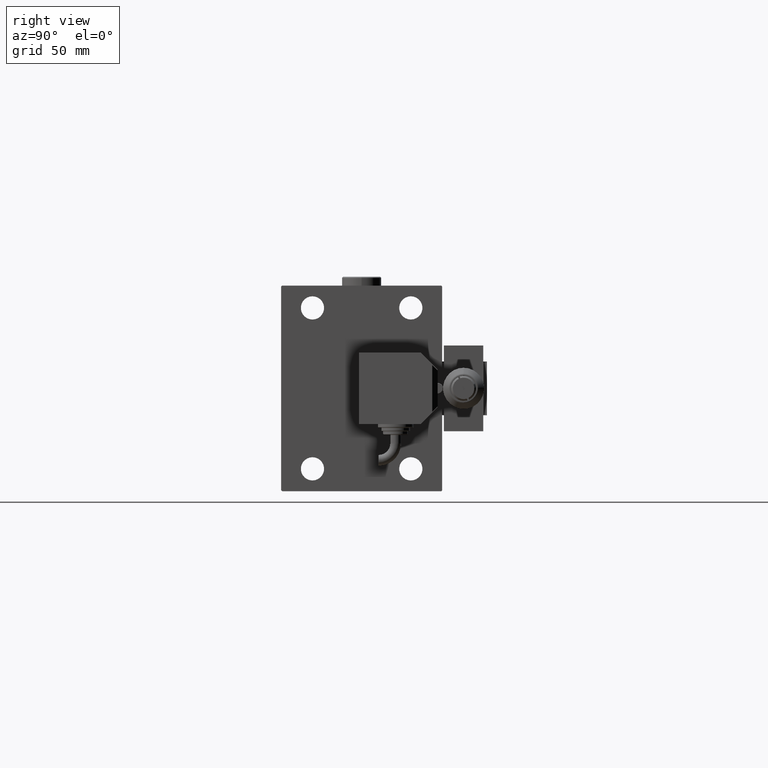
[diagram: clean part render]
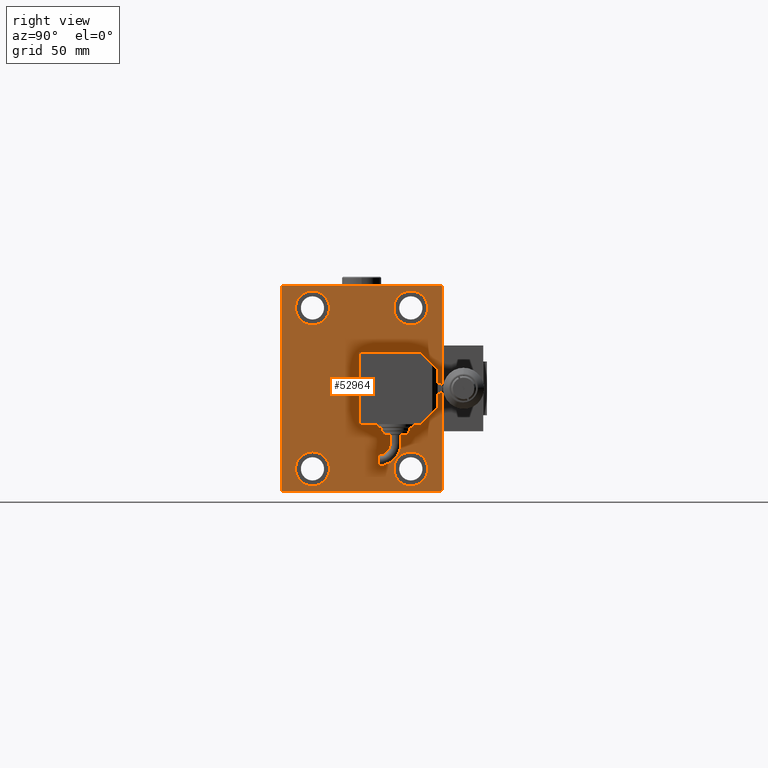
[diagram: same view with one face highlighted and labeled with its STEP entity id]
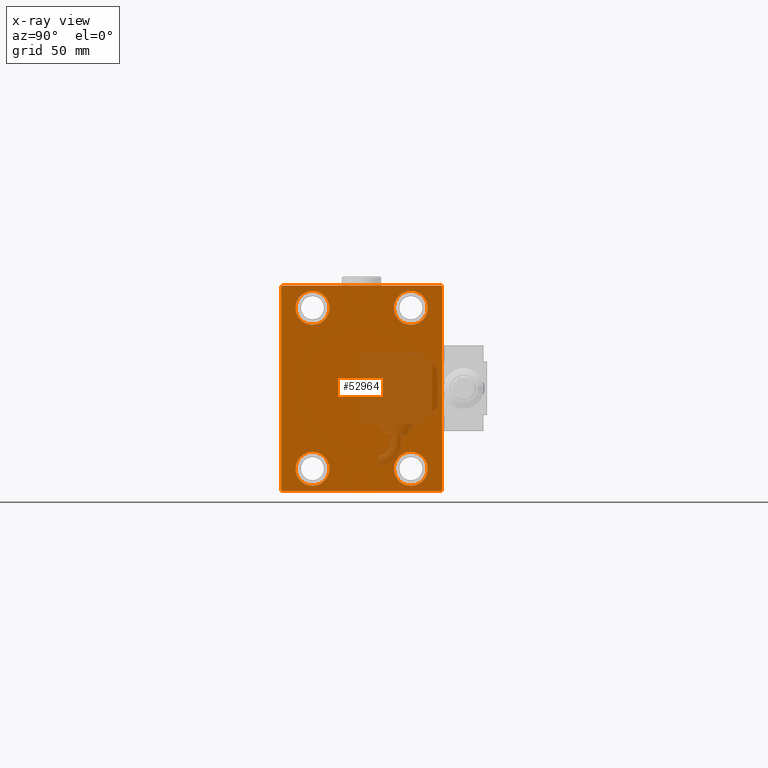
[diagram: x-ray of the same camera — body ghosted, the highlighted face saturated]
A machine part, right view. The second image highlights one B-rep face of the part: STEP entity #52964.
The next image is the same camera in x-ray: the body ghosted, the highlighted face saturated — about 21% of this face is hidden behind the body in this view.
In plain terms, the highlighted planar face has unit normal (1, 0, 0).
Its self-contained STEP definition (entity closure, byte-faithful):
#745 = DIRECTION ( 'NONE',  ( 0.000000000000000000, -1.206764157201257045E-16, 1.000000000000000000 ) ) ;
#1294 = CARTESIAN_POINT ( 'NONE',  ( 158.0000000000000000, 45.00000000000000000, 57.50000000000000711 ) ) ;
#1338 = DIRECTION ( 'NONE',  ( -0.000000000000000000, 0.7071067811865474617, 0.7071067811865474617 ) ) ;
#1536 = CARTESIAN_POINT ( 'NONE',  ( 158.0000000000000000, -51.00000000000001421, -51.00000000000001421 ) ) ;
#2130 = FACE_OUTER_BOUND ( 'NONE', #52590, .T. ) ;
#2798 = DIRECTION ( 'NONE',  ( 0.000000000000000000, 0.000000000000000000, 1.000000000000000000 ) ) ;
#3332 = CARTESIAN_POINT ( 'NONE',  ( 158.0000000000000000, -27.49999999999998934, 45.00000000000000711 ) ) ;
#3593 = AXIS2_PLACEMENT_3D ( 'NONE', #7144, #23738, #2798 ) ;
#4117 = LINE ( 'NONE', #45549, #38341 ) ;
#4161 = DIRECTION ( 'NONE',  ( 0.000000000000000000, -0.7071067811865474617, -0.7071067811865474617 ) ) ;
#4557 = VECTOR ( 'NONE', #4161, 1000.000000000000114 ) ;
#5149 = EDGE_CURVE ( 'NONE', #21983, #9089, #25234, .T. ) ;
#5206 = VECTOR ( 'NONE', #1338, 1000.000000000000114 ) ;
#5328 = EDGE_CURVE ( 'NONE', #32459, #35871, #35851, .T. ) ;
#5654 = DIRECTION ( 'NONE',  ( 0.000000000000000000, 1.000000000000000000, 0.000000000000000000 ) ) ;
#6693 = EDGE_CURVE ( 'NONE', #8319, #7851, #32913, .T. ) ;
#7144 = CARTESIAN_POINT ( 'NONE',  ( 158.0000000000000000, 27.50000000000001066, 45.00000000000000711 ) ) ;
#7473 = DIRECTION ( 'NONE',  ( 0.000000000000000000, 0.000000000000000000, 1.000000000000000000 ) ) ;
#7851 = VERTEX_POINT ( 'NONE', #14677 ) ;
#7898 = CIRCLE ( 'NONE', #26140, 9.500000000000001776 ) ;
#8196 = EDGE_CURVE ( 'NONE', #47255, #11612, #26649, .T. ) ;
#8319 = VERTEX_POINT ( 'NONE', #26017 ) ;
#8358 = CARTESIAN_POINT ( 'NONE',  ( 158.0000000000000000, -27.50000000000000000, -44.99999999999998579 ) ) ;
#8399 = CARTESIAN_POINT ( 'NONE',  ( 158.0000000000000000, -45.00000000000000000, 57.49999999999999289 ) ) ;
#8767 = CARTESIAN_POINT ( 'NONE',  ( 158.0000000000000000, -51.00000000000000000, 51.00000000000000000 ) ) ;
#9089 = VERTEX_POINT ( 'NONE', #37870 ) ;
#11249 = CARTESIAN_POINT ( 'NONE',  ( 158.0000000000000000, 27.50000000000001066, 35.50000000000000711 ) ) ;
#11400 = DIRECTION ( 'NONE',  ( -1.000000000000000000, -0.000000000000000000, -0.000000000000000000 ) ) ;
#11612 = VERTEX_POINT ( 'NONE', #21606 ) ;
#12042 = VERTEX_POINT ( 'NONE', #23419 ) ;
#12243 = CIRCLE ( 'NONE', #13979, 9.500000000000001776 ) ;
#13253 = ORIENTED_EDGE ( 'NONE', *, *, #50759, .T. ) ;
#13404 = VERTEX_POINT ( 'NONE', #11249 ) ;
#13979 = AXIS2_PLACEMENT_3D ( 'NONE', #50701, #37915, #33544 ) ;
#14677 = CARTESIAN_POINT ( 'NONE',  ( 158.0000000000000000, -44.49999999999997158, 57.49999999999999289 ) ) ;
#15418 = EDGE_CURVE ( 'NONE', #46035, #21983, #46578, .T. ) ;
#15757 = CARTESIAN_POINT ( 'NONE',  ( 158.0000000000000000, 27.50000000000001066, 45.00000000000000711 ) ) ;
#16675 = EDGE_CURVE ( 'NONE', #13404, #40064, #27906, .T. ) ;
#16750 = EDGE_CURVE ( 'NONE', #36241, #50084, #12243, .T. ) ;
#17041 = VERTEX_POINT ( 'NONE', #39777 ) ;
#17622 = AXIS2_PLACEMENT_3D ( 'NONE', #47135, #50414, #51207 ) ;
#18826 = ORIENTED_EDGE ( 'NONE', *, *, #15418, .T. ) ;
#19150 = CARTESIAN_POINT ( 'NONE',  ( 158.0000000000000000, -27.50000000000000000, -35.49999999999998579 ) ) ;
#19439 = EDGE_LOOP ( 'NONE', ( #29930, #34261 ) ) ;
#20098 = EDGE_CURVE ( 'NONE', #9089, #8319, #4117, .T. ) ;
#20120 = EDGE_CURVE ( 'NONE', #11612, #47255, #7898, .T. ) ;
#20190 = DIRECTION ( 'NONE',  ( -1.000000000000000000, -0.000000000000000000, -0.000000000000000000 ) ) ;
#20478 = LINE ( 'NONE', #8767, #4557 ) ;
#20814 = AXIS2_PLACEMENT_3D ( 'NONE', #43537, #39716, #51171 ) ;
#21606 = CARTESIAN_POINT ( 'NONE',  ( 158.0000000000000000, -27.50000000000000000, -54.49999999999998579 ) ) ;
#21675 = ORIENTED_EDGE ( 'NONE', *, *, #8196, .T. ) ;
#21939 = CARTESIAN_POINT ( 'NONE',  ( 158.0000000000000000, 45.00000000000001421, -57.50000000000000711 ) ) ;
#21983 = VERTEX_POINT ( 'NONE', #53113 ) ;
#22167 = CARTESIAN_POINT ( 'NONE',  ( 158.0000000000000000, -45.00000000000000000, -57.00000000000003553 ) ) ;
#22415 = AXIS2_PLACEMENT_3D ( 'NONE', #15757, #11400, #36215 ) ;
#22668 = EDGE_CURVE ( 'NONE', #7851, #12042, #20478, .T. ) ;
#23053 = VECTOR ( 'NONE', #5654, 1000.000000000000000 ) ;
#23419 = CARTESIAN_POINT ( 'NONE',  ( 158.0000000000000000, -45.00000000000000000, 56.99999999999999289 ) ) ;
#23475 = ORIENTED_EDGE ( 'NONE', *, *, #5149, .T. ) ;
#23738 = DIRECTION ( 'NONE',  ( -1.000000000000000000, -0.000000000000000000, -0.000000000000000000 ) ) ;
#24191 = DIRECTION ( 'NONE',  ( 0.000000000000000000, 0.000000000000000000, -1.000000000000000000 ) ) ;
#24954 = VECTOR ( 'NONE', #52467, 1000.000000000000114 ) ;
#25234 = LINE ( 'NONE', #21939, #27558 ) ;
#25409 = ORIENTED_EDGE ( 'NONE', *, *, #50411, .T. ) ;
#25566 = CARTESIAN_POINT ( 'NONE',  ( 158.0000000000000000, 51.00000000000001421, -51.00000000000001421 ) ) ;
#25672 = CIRCLE ( 'NONE', #50092, 9.500000000000001776 ) ;
#26017 = CARTESIAN_POINT ( 'NONE',  ( 158.0000000000000000, 44.50000000000002842, 57.50000000000000711 ) ) ;
#26140 = AXIS2_PLACEMENT_3D ( 'NONE', #53157, #32441, #40912 ) ;
#26649 = CIRCLE ( 'NONE', #33644, 9.500000000000001776 ) ;
#27558 = VECTOR ( 'NONE', #745, 1000.000000000000000 ) ;
#27906 = CIRCLE ( 'NONE', #3593, 9.500000000000001776 ) ;
#29039 = CARTESIAN_POINT ( 'NONE',  ( 158.0000000000000000, 27.50000000000001066, 54.50000000000000711 ) ) ;
#29219 = ORIENTED_EDGE ( 'NONE', *, *, #5328, .T. ) ;
#29930 = ORIENTED_EDGE ( 'NONE', *, *, #16750, .T. ) ;
#30415 = DIRECTION ( 'NONE',  ( 0.000000000000000000, -1.000000000000000000, -1.541976423090495387E-16 ) ) ;
#30446 = FACE_BOUND ( 'NONE', #45161, .T. ) ;
#30867 = CARTESIAN_POINT ( 'NONE',  ( 158.0000000000000000, -44.50000000000002842, -57.50000000000000711 ) ) ;
#30982 = FACE_BOUND ( 'NONE', #40509, .T. ) ;
#31242 = LINE ( 'NONE', #39160, #23053 ) ;
#31761 = EDGE_CURVE ( 'NONE', #45965, #17041, #48975, .T. ) ;
#31786 = ORIENTED_EDGE ( 'NONE', *, *, #20098, .T. ) ;
#32441 = DIRECTION ( 'NONE',  ( -1.000000000000000000, -0.000000000000000000, -0.000000000000000000 ) ) ;
#32459 = VERTEX_POINT ( 'NONE', #22167 ) ;
#32913 = LINE ( 'NONE', #1294, #49417 ) ;
#33194 = LINE ( 'NONE', #8399, #42462 ) ;
#33544 = DIRECTION ( 'NONE',  ( 0.000000000000000000, 0.000000000000000000, 1.000000000000000000 ) ) ;
#33644 = AXIS2_PLACEMENT_3D ( 'NONE', #8358, #33940, #37523 ) ;
#33796 = ORIENTED_EDGE ( 'NONE', *, *, #40736, .T. ) ;
#33940 = DIRECTION ( 'NONE',  ( -1.000000000000000000, -0.000000000000000000, -0.000000000000000000 ) ) ;
#34261 = ORIENTED_EDGE ( 'NONE', *, *, #41119, .T. ) ;
#34812 = FACE_BOUND ( 'NONE', #19439, .T. ) ;
#35352 = PLANE ( 'NONE',  #20814 ) ;
#35851 = LINE ( 'NONE', #1536, #24954 ) ;
#35871 = VERTEX_POINT ( 'NONE', #30867 ) ;
#36215 = DIRECTION ( 'NONE',  ( 0.000000000000000000, 0.000000000000000000, 1.000000000000000000 ) ) ;
#36241 = VERTEX_POINT ( 'NONE', #49813 ) ;
#37523 = DIRECTION ( 'NONE',  ( 0.000000000000000000, 0.000000000000000000, 1.000000000000000000 ) ) ;
#37870 = CARTESIAN_POINT ( 'NONE',  ( 158.0000000000000000, 45.00000000000000000, 57.00000000000000711 ) ) ;
#37915 = DIRECTION ( 'NONE',  ( -1.000000000000000000, -0.000000000000000000, -0.000000000000000000 ) ) ;
#38341 = VECTOR ( 'NONE', #52888, 1000.000000000000114 ) ;
#39067 = AXIS2_PLACEMENT_3D ( 'NONE', #3332, #20190, #40117 ) ;
#39160 = CARTESIAN_POINT ( 'NONE',  ( 158.0000000000000000, -45.00000000000000000, -57.50000000000000711 ) ) ;
#39371 = ORIENTED_EDGE ( 'NONE', *, *, #16675, .T. ) ;
#39379 = ORIENTED_EDGE ( 'NONE', *, *, #31761, .T. ) ;
#39716 = DIRECTION ( 'NONE',  ( 1.000000000000000000, 0.000000000000000000, 0.000000000000000000 ) ) ;
#39777 = CARTESIAN_POINT ( 'NONE',  ( 158.0000000000000000, -27.49999999999998934, 35.50000000000000711 ) ) ;
#40064 = VERTEX_POINT ( 'NONE', #29039 ) ;
#40117 = DIRECTION ( 'NONE',  ( 0.000000000000000000, 0.000000000000000000, 1.000000000000000000 ) ) ;
#40509 = EDGE_LOOP ( 'NONE', ( #45465, #39379 ) ) ;
#40736 = EDGE_CURVE ( 'NONE', #35871, #46035, #31242, .T. ) ;
#40912 = DIRECTION ( 'NONE',  ( 0.000000000000000000, 0.000000000000000000, 1.000000000000000000 ) ) ;
#41119 = EDGE_CURVE ( 'NONE', #50084, #36241, #25672, .T. ) ;
#42462 = VECTOR ( 'NONE', #24191, 1000.000000000000000 ) ;
#43537 = CARTESIAN_POINT ( 'NONE',  ( 158.0000000000000000, 0.000000000000000000, 0.000000000000000000 ) ) ;
#43654 = CARTESIAN_POINT ( 'NONE',  ( 158.0000000000000000, 27.49999999999998934, -35.49999999999998579 ) ) ;
#44810 = DIRECTION ( 'NONE',  ( -1.000000000000000000, -0.000000000000000000, -0.000000000000000000 ) ) ;
#45161 = EDGE_LOOP ( 'NONE', ( #39371, #25409 ) ) ;
#45465 = ORIENTED_EDGE ( 'NONE', *, *, #51720, .T. ) ;
#45549 = CARTESIAN_POINT ( 'NONE',  ( 158.0000000000000000, 51.00000000000001421, 51.00000000000001421 ) ) ;
#45965 = VERTEX_POINT ( 'NONE', #51123 ) ;
#46035 = VERTEX_POINT ( 'NONE', #49747 ) ;
#46578 = LINE ( 'NONE', #25566, #5206 ) ;
#47135 = CARTESIAN_POINT ( 'NONE',  ( 158.0000000000000000, -27.49999999999998934, 45.00000000000000711 ) ) ;
#47255 = VERTEX_POINT ( 'NONE', #19150 ) ;
#48975 = CIRCLE ( 'NONE', #17622, 9.500000000000001776 ) ;
#49243 = ORIENTED_EDGE ( 'NONE', *, *, #6693, .T. ) ;
#49417 = VECTOR ( 'NONE', #30415, 1000.000000000000000 ) ;
#49513 = CIRCLE ( 'NONE', #39067, 9.500000000000001776 ) ;
#49747 = CARTESIAN_POINT ( 'NONE',  ( 158.0000000000000000, 44.50000000000001421, -57.50000000000000711 ) ) ;
#49813 = CARTESIAN_POINT ( 'NONE',  ( 158.0000000000000000, 27.49999999999998934, -54.49999999999998579 ) ) ;
#50084 = VERTEX_POINT ( 'NONE', #43654 ) ;
#50092 = AXIS2_PLACEMENT_3D ( 'NONE', #52976, #44810, #7473 ) ;
#50301 = ORIENTED_EDGE ( 'NONE', *, *, #22668, .T. ) ;
#50411 = EDGE_CURVE ( 'NONE', #40064, #13404, #52914, .T. ) ;
#50414 = DIRECTION ( 'NONE',  ( -1.000000000000000000, -0.000000000000000000, -0.000000000000000000 ) ) ;
#50701 = CARTESIAN_POINT ( 'NONE',  ( 158.0000000000000000, 27.49999999999998934, -44.99999999999998579 ) ) ;
#50759 = EDGE_CURVE ( 'NONE', #12042, #32459, #33194, .T. ) ;
#50829 = ORIENTED_EDGE ( 'NONE', *, *, #20120, .T. ) ;
#51123 = CARTESIAN_POINT ( 'NONE',  ( 158.0000000000000000, -27.49999999999998934, 54.50000000000000711 ) ) ;
#51171 = DIRECTION ( 'NONE',  ( 0.000000000000000000, 0.000000000000000000, -1.000000000000000000 ) ) ;
#51207 = DIRECTION ( 'NONE',  ( 0.000000000000000000, 0.000000000000000000, 1.000000000000000000 ) ) ;
#51438 = FACE_BOUND ( 'NONE', #51622, .T. ) ;
#51622 = EDGE_LOOP ( 'NONE', ( #50829, #21675 ) ) ;
#51720 = EDGE_CURVE ( 'NONE', #17041, #45965, #49513, .T. ) ;
#52467 = DIRECTION ( 'NONE',  ( -0.000000000000000000, 0.7071067811865474617, -0.7071067811865474617 ) ) ;
#52590 = EDGE_LOOP ( 'NONE', ( #49243, #50301, #13253, #29219, #33796, #18826, #23475, #31786 ) ) ;
#52888 = DIRECTION ( 'NONE',  ( -0.000000000000000000, -0.7071067811865474617, 0.7071067811865474617 ) ) ;
#52914 = CIRCLE ( 'NONE', #22415, 9.500000000000001776 ) ;
#52964 = ADVANCED_FACE ( 'NONE', ( #34812, #30982, #30446, #51438, #2130 ), #35352, .T. ) ;
#52976 = CARTESIAN_POINT ( 'NONE',  ( 158.0000000000000000, 27.49999999999998934, -44.99999999999998579 ) ) ;
#53113 = CARTESIAN_POINT ( 'NONE',  ( 158.0000000000000000, 45.00000000000001421, -57.00000000000003553 ) ) ;
#53157 = CARTESIAN_POINT ( 'NONE',  ( 158.0000000000000000, -27.50000000000000000, -44.99999999999998579 ) ) ;